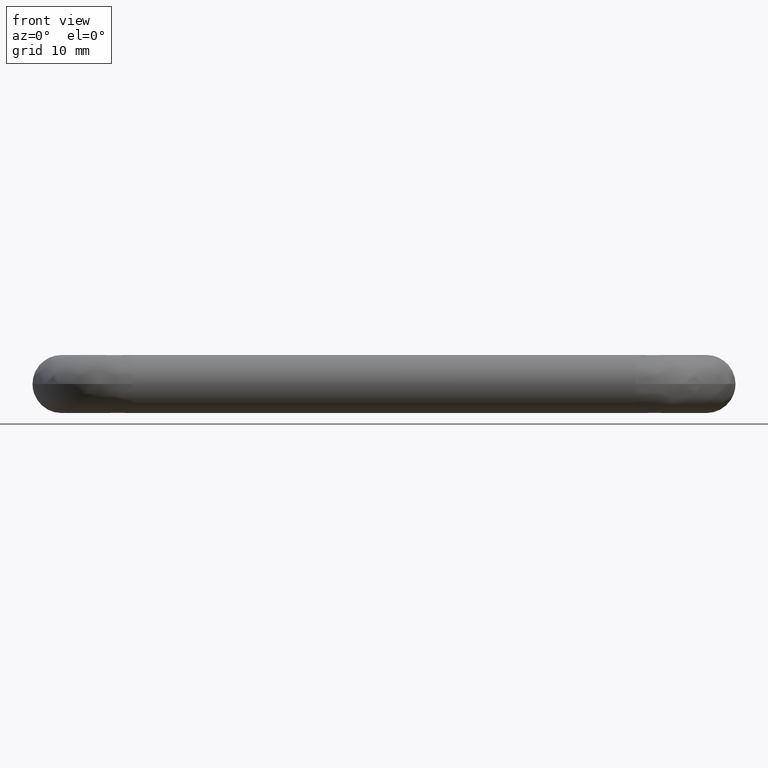
[diagram: clean part render]
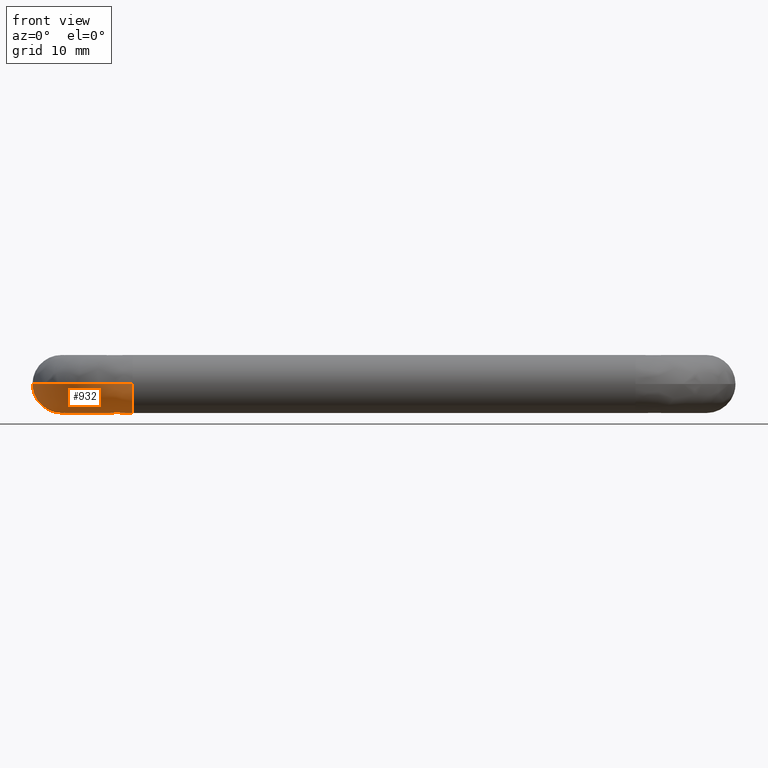
[diagram: same view with one face highlighted and labeled with its STEP entity id]
A machine part, front view. The second image highlights one B-rep face of the part: STEP entity #932.
In plain terms, the highlighted face is a freeform B-spline surface patch.
Its self-contained STEP definition (entity closure, byte-faithful):
#656=CARTESIAN_POINT('',(10.999999999889230,-30.0,-5.510729E-016));
#657=VERTEX_POINT('',#656);
#671=CARTESIAN_POINT('',(10.999999999887480,-28.540156176384809,-3.317748237039410));
#672=VERTEX_POINT('',#671);
#673=CARTESIAN_POINT('',(10.999999999887480,-28.540156176384809,-3.317748237039410));
#674=CARTESIAN_POINT('',(10.999999999887830,-28.841094374745790,-3.042168033204405));
#675=CARTESIAN_POINT('',(10.999999999888431,-29.279416428226209,-2.514000978919796));
#676=CARTESIAN_POINT('',(10.999999999888770,-29.682883771287671,-1.712317664369438));
#677=CARTESIAN_POINT('',(10.999999999889271,-29.933948620933791,-0.913196398474195));
#678=CARTESIAN_POINT('',(10.999999999889139,-30.000084577875679,-0.349757497932895));
#679=CARTESIAN_POINT('',(10.999999999889230,-30.0,-5.510729E-016));
#680=B_SPLINE_CURVE_WITH_KNOTS('',3,(#673,#674,#675,#676,#677,#678,#679),.UNSPECIFIED.,.F.,.U.,(4,1,1,1,4),(0.000000036382727,1.224130083579019,2.040207201328659,2.681415740279319,3.730667463817048),.UNSPECIFIED.);
#681=EDGE_CURVE('',#672,#657,#680,.T.);
#715=CARTESIAN_POINT('',(10.999999999883840,-25.500001312188399,-4.499999999999809));
#716=VERTEX_POINT('',#715);
#717=CARTESIAN_POINT('',(10.999999999883840,-25.500001312188399,-4.499999999999809));
#718=CARTESIAN_POINT('',(10.999999999884190,-25.812936394199429,-4.500045574269570));
#719=CARTESIAN_POINT('',(10.999999999884951,-26.386615369414809,-4.439899855585603));
#720=CARTESIAN_POINT('',(10.999999999886130,-27.455105240255790,-4.114698177246059));
#721=CARTESIAN_POINT('',(10.999999999887050,-28.143070232979952,-3.682264284246935));
#722=CARTESIAN_POINT('',(10.999999999887480,-28.540156176384809,-3.317748237039410));
#723=B_SPLINE_CURVE_WITH_KNOTS('',3,(#717,#718,#719,#720,#721,#722),.UNSPECIFIED.,.F.,.U.,(4,1,1,4),(0.000000026927752,0.938803312517889,1.721117551084434,3.337959714144676),.UNSPECIFIED.);
#724=EDGE_CURVE('',#716,#672,#723,.T.);
#726=CARTESIAN_POINT('',(10.999999999878449,-21.0,-2.209820E-016));
#727=VERTEX_POINT('',#726);
#728=CARTESIAN_POINT('',(10.999999999878449,-21.0,-2.209820E-016));
#729=CARTESIAN_POINT('',(10.999999999878471,-20.999966456636908,-0.312924423594947));
#730=CARTESIAN_POINT('',(10.999999999878510,-21.073203574506611,-1.012427034785604));
#731=CARTESIAN_POINT('',(10.999999999878931,-21.386577678668122,-1.905630895116580));
#732=CARTESIAN_POINT('',(10.999999999879639,-21.933283964423079,-2.805178714098325));
#733=CARTESIAN_POINT('',(10.999999999880210,-22.617021597614070,-3.514629866125145));
#734=CARTESIAN_POINT('',(10.999999999881711,-23.464774584118089,-4.044036750630277));
#735=CARTESIAN_POINT('',(10.999999999882281,-24.395622511929119,-4.403119282790645));
#736=CARTESIAN_POINT('',(10.999999999883510,-25.076600165066459,-4.500173526276408));
#737=CARTESIAN_POINT('',(10.999999999883840,-25.500001312188399,-4.499999999999809));
#738=B_SPLINE_CURVE_WITH_KNOTS('',3,(#728,#729,#730,#731,#732,#733,#734,#735,#736,#737),.UNSPECIFIED.,.F.,.U.,(4,1,1,1,1,1,1,4),(0.000000129996293,0.938782926623967,2.098501651816387,2.816411401930907,4.086532423584855,5.025345881810569,5.798488213865023,7.068628562522971),.UNSPECIFIED.);
#739=EDGE_CURVE('',#727,#716,#738,.T.);
#784=CARTESIAN_POINT('',(-4.499999999999998,-14.500000000074150,-5.510729E-016));
#785=VERTEX_POINT('',#784);
#786=CARTESIAN_POINT('',(-4.499999999999998,-14.500000000074150,-5.510729E-016));
#787=CARTESIAN_POINT('',(-4.500050009750489,-15.355957649346831,-4.775915E-016));
#788=CARTESIAN_POINT('',(-4.352604959209121,-17.131275159191439,-3.378517E-016));
#789=CARTESIAN_POINT('',(-3.767346380240489,-19.379778854053530,-1.950755E-016));
#790=CARTESIAN_POINT('',(-2.776076494341774,-21.752464871044889,-7.649198E-017));
#791=CARTESIAN_POINT('',(-1.498588775085845,-23.811620489991981,-9.392070E-018));
#792=CARTESIAN_POINT('',(0.102664166051576,-25.578014694200348,4.783981E-018));
#793=CARTESIAN_POINT('',(1.664864063261271,-26.925585038074420,-1.364024E-017));
#794=CARTESIAN_POINT('',(3.678112422541562,-28.262120847539538,-7.173058E-017));
#795=CARTESIAN_POINT('',(5.908302225031168,-29.210027933230151,-1.818043E-016));
#796=CARTESIAN_POINT('',(8.463878001525986,-29.850019470746322,-3.462418E-016));
#797=CARTESIAN_POINT('',(9.985518575153487,-30.000144163950161,-4.639754E-016));
#798=CARTESIAN_POINT('',(10.999999999889230,-30.0,-5.510729E-016));
#799=B_SPLINE_CURVE_WITH_KNOTS('',3,(#786,#787,#788,#789,#790,#791,#792,#793,#794,#795,#796,#797,#798),.UNSPECIFIED.,.F.,.U.,(4,1,1,1,1,1,1,1,1,1,4),(0.000000068214565,2.567873580848037,5.325984320747683,6.942810691561316,10.271582378872120,12.554083748895909,14.075799424827270,16.453490098125840,19.782251822845652,21.303971918716119,24.347381259133510),.UNSPECIFIED.);
#800=EDGE_CURVE('',#785,#657,#799,.T.);
#805=CARTESIAN_POINT('',(4.500000000000002,-14.500000000129740,-1.105386E-016));
#806=VERTEX_POINT('',#805);
#807=CARTESIAN_POINT('',(4.500000000000002,-14.500000000129740,-1.105386E-016));
#808=CARTESIAN_POINT('',(4.499967433719538,-14.898834046942730,-1.543942E-016));
#809=CARTESIAN_POINT('',(4.576076023365991,-15.723087760096851,-2.379474E-016));
#810=CARTESIAN_POINT('',(4.881165445999225,-16.775146901522270,-3.252620E-016));
#811=CARTESIAN_POINT('',(5.370939403156898,-17.810675686840280,-3.935907E-016));
#812=CARTESIAN_POINT('',(6.057540370798526,-18.798507558164228,-4.383778E-016));
#813=CARTESIAN_POINT('',(7.174709303796848,-19.836394799741800,-4.486428E-016));
#814=CARTESIAN_POINT('',(8.420505796980002,-20.522123544204110,-4.082300E-016));
#815=CARTESIAN_POINT('',(9.750360806165991,-20.916421039572999,-3.279596E-016));
#816=CARTESIAN_POINT('',(10.547990123140041,-21.000070064836830,-2.630088E-016));
#817=CARTESIAN_POINT('',(10.999999999878449,-21.0,-2.209820E-016));
#818=B_SPLINE_CURVE_WITH_KNOTS('',3,(#807,#808,#809,#810,#811,#812,#813,#814,#815,#816,#817),.UNSPECIFIED.,.F.,.U.,(4,1,1,1,1,1,1,1,4),(0.000000105310674,1.196507849083419,2.472791450141632,3.270470643849758,4.626550626128445,6.062322321907257,7.817215647317670,8.854213433333728,10.210240188551619),.UNSPECIFIED.);
#819=EDGE_CURVE('',#806,#727,#818,.T.);
#860=CARTESIAN_POINT('',(4.515565757257947,-14.050430704391124,0.125805319613359));
#861=CARTESIAN_POINT('',(3.998623960502375,-21.506622933548005,0.125805319613359));
#862=CARTESIAN_POINT('',(11.454426841815549,-20.984095638208736,0.125805319613359));
#863=CARTESIAN_POINT('',(4.515565757257948,-14.050430704391129,0.063268989149128));
#864=CARTESIAN_POINT('',(3.998623960502374,-21.506622933548012,0.063268989149128));
#865=CARTESIAN_POINT('',(11.454426841815541,-20.984095638208736,0.063268989149128));
#866=CARTESIAN_POINT('',(4.515565757257944,-14.050430704391124,-4.499999999999997));
#867=CARTESIAN_POINT('',(3.998623960502376,-21.506622933548012,-4.499999999999997));
#868=CARTESIAN_POINT('',(11.454426841815549,-20.984095638208736,-4.499999999999997));
#869=CARTESIAN_POINT('',(0.026342050744216,-13.739190422815753,-4.499999999999999));
#870=CARTESIAN_POINT('',(-0.848482528380597,-26.357361887542787,-4.499999999999998));
#871=CARTESIAN_POINT('',(11.769030039995547,-25.473084926199402,-4.499999999999998));
#872=CARTESIAN_POINT('',(-4.462881655769511,-13.427950141240375,-4.499999999999997));
#873=CARTESIAN_POINT('',(-5.695589017263568,-31.208100841537568,-4.499999999999997));
#874=CARTESIAN_POINT('',(12.083633238175533,-29.962074214190050,-4.499999999999997));
#875=CARTESIAN_POINT('',(-4.462881655769513,-13.427950141240379,0.063268989149130));
#876=CARTESIAN_POINT('',(-5.695589017263568,-31.208100841537565,0.063268989149130));
#877=CARTESIAN_POINT('',(12.083633238175540,-29.962074214190050,0.063268989149130));
#878=CARTESIAN_POINT('',(-4.462881655769514,-13.427950141240375,0.125805319613362));
#879=CARTESIAN_POINT('',(-5.695589017263568,-31.208100841537551,0.125805319613362));
#880=CARTESIAN_POINT('',(12.083633238175535,-29.962074214190057,0.125805319613362));
#888=(BOUNDED_SURFACE()B_SPLINE_SURFACE(2,2,((#860,#863,#866,#869,#872,#875,#878),(#861,#864,#867,#870,#873,#876,#879),(#862,#865,#868,#871,#874,#877,#880)),.UNSPECIFIED.,.F.,.F.,.U.)B_SPLINE_SURFACE_WITH_KNOTS((3,3),(3,1,2,1,3),(0.0,28.246572312401589),(0.0,0.149116882454311,7.604961005170024,15.060805127885740,15.209922010340049),.UNSPECIFIED.)GEOMETRIC_REPRESENTATION_ITEM()RATIONAL_B_SPLINE_SURFACE(((0.932283873808976,0.926885922252278,0.651590392860676,0.921487970695580,0.651590392860676,0.926885922252278,0.932283873808976),(0.608398400205757,0.604875755243482,0.425220862167464,0.601353110281207,0.425220862167464,0.604875755243482,0.608398400205757),(0.921984264842574,0.916645948330325,0.644391806205615,0.911307631818076,0.644391806205615,0.916645948330325,0.921984264842575)))REPRESENTATION_ITEM('')SURFACE());
#889=ORIENTED_EDGE('',*,*,#800,.F.);
#890=CARTESIAN_POINT('',(-3.040156176654291,-14.500000000085111,-3.317748236792479));
#891=VERTEX_POINT('',#890);
#892=CARTESIAN_POINT('',(-3.040156176654291,-14.500000000085111,-3.317748236792479));
#893=CARTESIAN_POINT('',(-3.298072887182412,-14.500000000083370,-3.081512231164429));
#894=CARTESIAN_POINT('',(-3.719979370073079,-14.500000000080471,-2.592900716720671));
#895=CARTESIAN_POINT('',(-4.140150479050720,-14.500000000077479,-1.821393749278290));
#896=CARTESIAN_POINT('',(-4.425433006795216,-14.500000000075079,-0.971488482656748));
#897=CARTESIAN_POINT('',(-4.500101718809662,-14.500000000074470,-0.369189426660170));
#898=CARTESIAN_POINT('',(-4.499999999999998,-14.500000000074150,-5.510729E-016));
#899=B_SPLINE_CURVE_WITH_KNOTS('',3,(#892,#893,#894,#895,#896,#897,#898),.UNSPECIFIED.,.F.,.U.,(4,1,1,1,4),(0.000000036382506,1.049251759836285,1.923606279225992,2.623121235003755,3.730667463451536),.UNSPECIFIED.);
#900=EDGE_CURVE('',#891,#785,#899,.T.);
#901=ORIENTED_EDGE('',*,*,#900,.F.);
#902=CARTESIAN_POINT('',(-0.000001312188398,-14.500000000101950,-4.499999999999809));
#903=VERTEX_POINT('',#902);
#904=CARTESIAN_POINT('',(-0.000001312188398,-14.500000000101950,-4.499999999999809));
#905=CARTESIAN_POINT('',(-0.260776839589056,-14.500000000100499,-4.500011402768151));
#906=CARTESIAN_POINT('',(-0.851865450377709,-14.500000000097250,-4.448510802382175));
#907=CARTESIAN_POINT('',(-1.926489052648701,-14.500000000091230,-4.134987868460958));
#908=CARTESIAN_POINT('',(-2.655853198997037,-14.500000000087260,-3.670446154337228));
#909=CARTESIAN_POINT('',(-3.040156176654291,-14.500000000085111,-3.317748236792479));
#910=B_SPLINE_CURVE_WITH_KNOTS('',3,(#904,#905,#906,#907,#908,#909),.UNSPECIFIED.,.F.,.U.,(4,1,1,4),(0.000000026927630,0.782333655713439,1.773280584081551,3.337959714510172),.UNSPECIFIED.);
#911=EDGE_CURVE('',#903,#891,#910,.T.);
#912=ORIENTED_EDGE('',*,*,#911,.F.);
#913=CARTESIAN_POINT('',(4.500000000000002,-14.500000000129740,-1.105386E-016));
#914=CARTESIAN_POINT('',(4.500306990955743,-14.500000000129770,-0.497057840347522));
#915=CARTESIAN_POINT('',(4.367454832384463,-14.500000000128880,-1.288345867564376));
#916=CARTESIAN_POINT('',(3.882167841618982,-14.500000000125979,-2.347846532019020));
#917=CARTESIAN_POINT('',(3.320650486907415,-14.500000000122419,-3.085837440983079));
#918=CARTESIAN_POINT('',(2.705030459435543,-14.500000000118520,-3.616765185072407));
#919=CARTESIAN_POINT('',(2.112953293966022,-14.500000000115110,-3.991671967295062));
#920=CARTESIAN_POINT('',(1.251563275861642,-14.500000000109480,-4.373699709581846));
#921=CARTESIAN_POINT('',(0.497046307582338,-14.500000000105031,-4.500273973914810));
#922=CARTESIAN_POINT('',(-0.000001312188398,-14.500000000101950,-4.499999999999809));
#923=B_SPLINE_CURVE_WITH_KNOTS('',3,(#913,#914,#915,#916,#917,#918,#919,#920,#921,#922),.UNSPECIFIED.,.F.,.U.,(4,1,1,1,1,1,1,4),(0.000000129991347,1.491032182041450,2.374623049517825,3.479129895118137,4.252219692169518,4.804454692762556,5.577597024605678,7.068628562522982),.UNSPECIFIED.);
#924=EDGE_CURVE('',#806,#903,#923,.T.);
#925=ORIENTED_EDGE('',*,*,#924,.F.);
#926=ORIENTED_EDGE('',*,*,#819,.T.);
#927=ORIENTED_EDGE('',*,*,#739,.T.);
#928=ORIENTED_EDGE('',*,*,#724,.T.);
#929=ORIENTED_EDGE('',*,*,#681,.T.);
#930=EDGE_LOOP('',(#889,#901,#912,#925,#926,#927,#928,#929));
#931=FACE_OUTER_BOUND('',#930,.T.);
#932=ADVANCED_FACE('',(#931),#888,.T.);